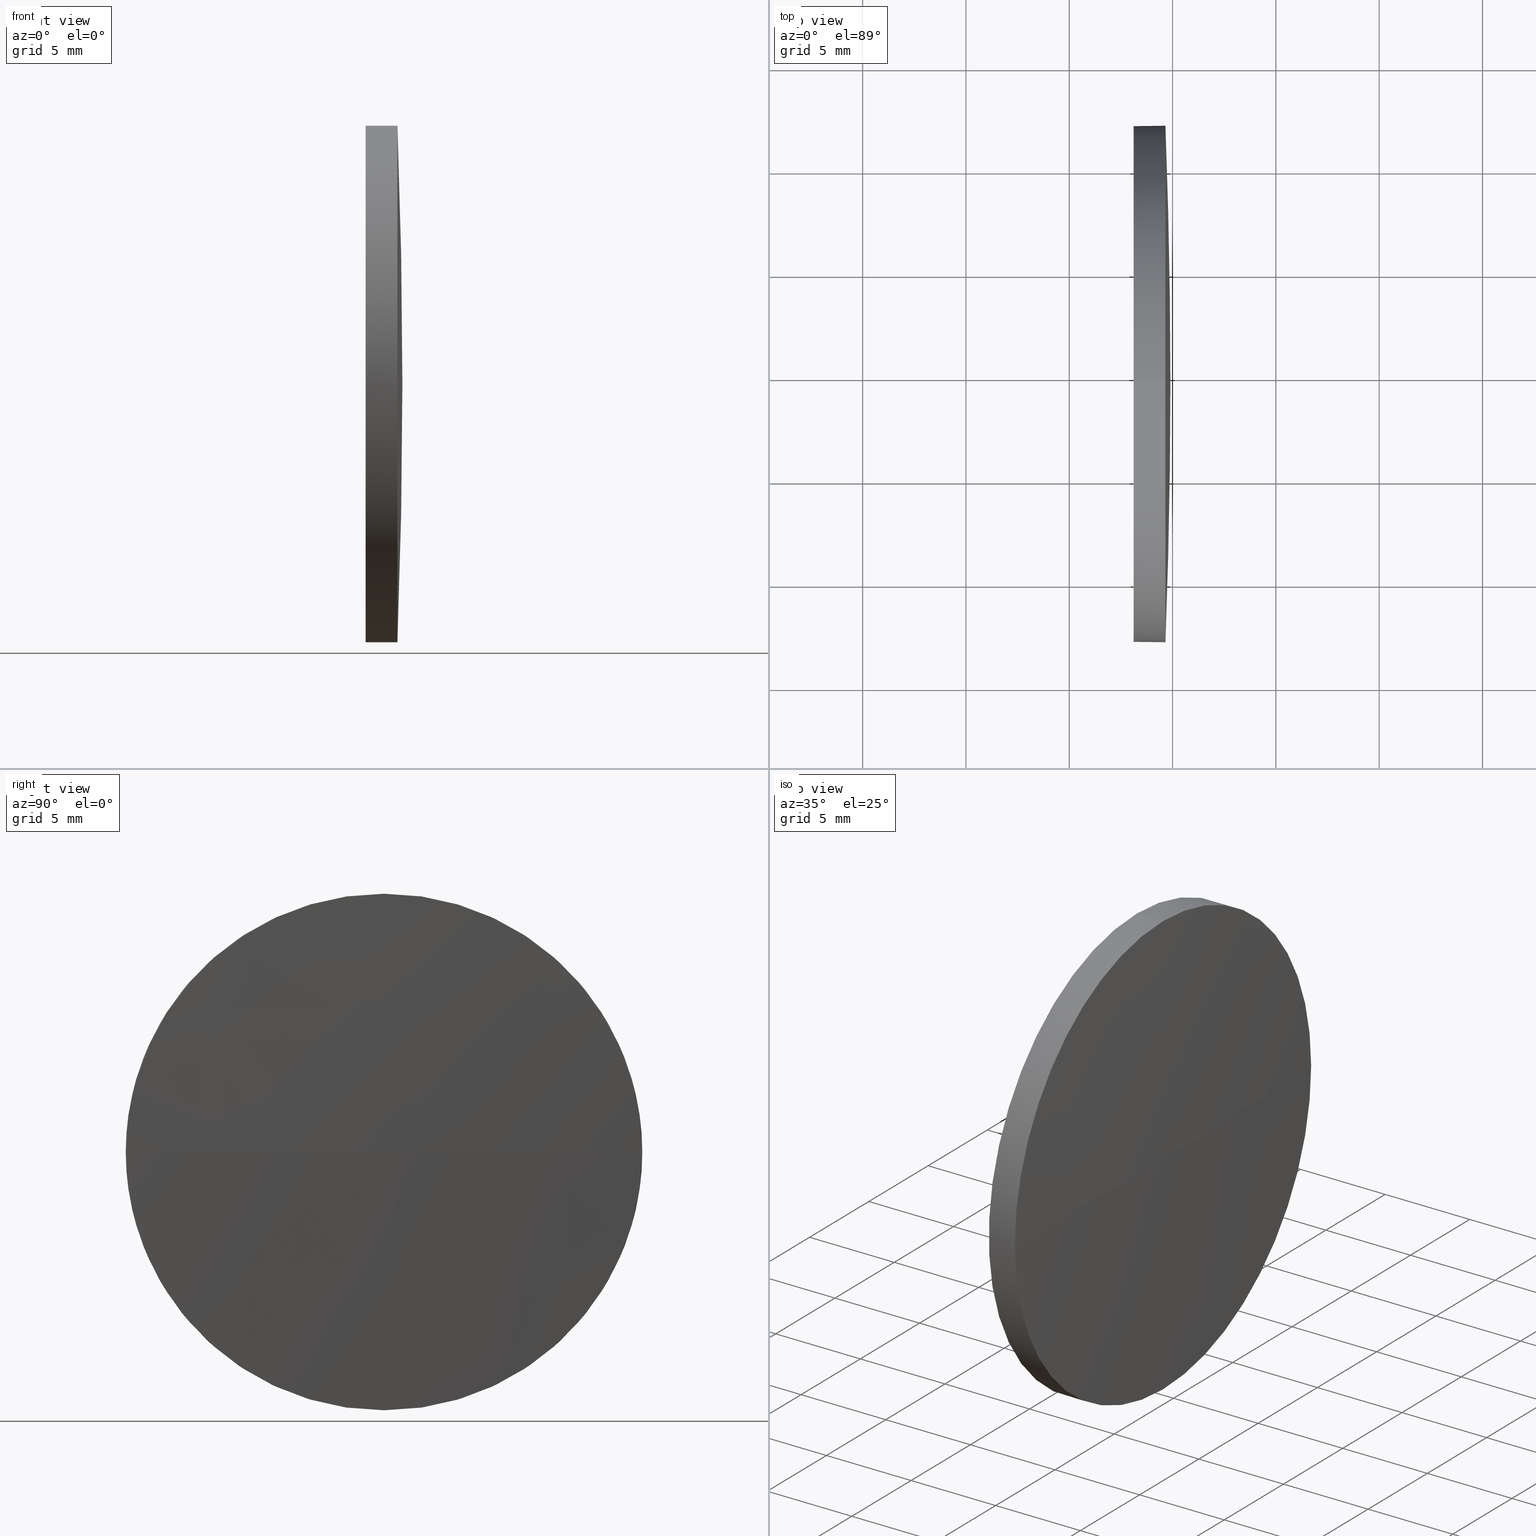
[diagram: canonical four-view strip — front | top / right | iso, engineering-drawing reading convention]
A machine part, canonical four-view strip (front | top / right | iso — engineering-drawing reading convention). The complete STEP part file that produces these views, byte-faithful:
ISO-10303-21;
HEADER;
FILE_DESCRIPTION (( 'STEP AP214' ),
    '1' );
FILE_NAME ('100138.STEP',
    '2019-05-15T05:12:33',
    ( '' ),
    ( '' ),
    'SwSTEP 2.0',
    'SolidWorks 2016',
    '' );
FILE_SCHEMA (( 'AUTOMOTIVE_DESIGN' ));
ENDSEC;

DATA;
#1 = AXIS2_PLACEMENT_3D ( 'NONE', #71, #147, #174 ) ;
#2 = VERTEX_POINT ( 'NONE', #53 ) ;
#3 = DIRECTION ( 'NONE',  ( -1.000000000000000000, -0.0000000000000000000, -0.0000000000000000000 ) ) ;
#4 = DIRECTION ( 'NONE',  ( 0.0000000000000000000, -1.224646799147353200E-016, 1.000000000000000000 ) ) ;
#5 = ORIENTED_EDGE ( 'NONE', *, *, #157, .F. ) ;
#6 = AXIS2_PLACEMENT_3D ( 'NONE', #145, #30, #42 ) ;
#7 = CARTESIAN_POINT ( 'NONE',  ( 483.1155688377202800, 64.61114533818170000, 12.49999999999999600 ) ) ;
#8 = PRODUCT_RELATED_PRODUCT_CATEGORY ( 'part', '', ( #135 ) ) ;
#9 = APPLICATION_CONTEXT ( 'automotive_design' ) ;
#10 = SHAPE_DEFINITION_REPRESENTATION ( #70, #142 ) ;
#11 = AXIS2_PLACEMENT_3D ( 'NONE', #56, #160, #175 ) ;
#12 = PRESENTATION_STYLE_ASSIGNMENT (( #179 ) ) ;
#13 = PRESENTATION_LAYER_ASSIGNMENT (  '', '', ( #171 ) ) ;
#14 = AXIS2_PLACEMENT_3D ( 'NONE', #86, #45, #162 ) ;
#15 = ORIENTED_EDGE ( 'NONE', *, *, #51, .T. ) ;
#16 =( LENGTH_UNIT ( ) NAMED_UNIT ( * ) SI_UNIT ( .MILLI., .METRE. ) );
#17 = CARTESIAN_POINT ( 'NONE',  ( 484.6555688377202400, 64.61114533818170000, 12.49999999999999600 ) ) ;
#18 = CARTESIAN_POINT ( 'NONE',  ( 480.7499529349593100, 64.61114533818170000, -12.49999999999999600 ) ) ;
#19 = DIRECTION ( 'NONE',  ( 0.0000000000000000000, -1.000000000000000000, 0.0000000000000000000 ) ) ;
#20 = DIRECTION ( 'NONE',  ( -1.000000000000000000, -0.0000000000000000000, -0.0000000000000000000 ) ) ;
#21 = DIRECTION ( 'NONE',  ( 0.0000000000000000000, 0.0000000000000000000, 1.000000000000000000 ) ) ;
#22 = CIRCLE ( 'NONE', #94, 12.49999999999999600 ) ;
#23 = ORIENTED_EDGE ( 'NONE', *, *, #150, .T. ) ;
#24 = EDGE_CURVE ( 'NONE', #170, #2, #151, .T. ) ;
#25 = FACE_OUTER_BOUND ( 'NONE', #165, .T. ) ;
#26 = EDGE_CURVE ( 'NONE', #41, #146, #180, .T. ) ;
#27 = VECTOR ( 'NONE', #89, 1000.000000000000000 ) ;
#28 = ORIENTED_EDGE ( 'NONE', *, *, #157, .T. ) ;
#29 = DIRECTION ( 'NONE',  ( 0.0000000000000000000, 0.0000000000000000000, 1.000000000000000000 ) ) ;
#30 = DIRECTION ( 'NONE',  ( 0.0000000000000000000, 0.0000000000000000000, 1.000000000000000000 ) ) ;
#31 = EDGE_LOOP ( 'NONE', ( #99, #76 ) ) ;
#32 = VECTOR ( 'NONE', #173, 1000.000000000000000 ) ;
#33 = ORIENTED_EDGE ( 'NONE', *, *, #88, .F. ) ;
#34 = APPLICATION_PROTOCOL_DEFINITION ( 'draft international standard', 'automotive_design', 1998, #48 ) ;
#35 = PRODUCT_CONTEXT ( 'NONE', #9, 'mechanical' ) ;
#36 = COLOUR_RGB ( '',1.000000000000000000, 1.000000000000000000, 1.000000000000000000 ) ;
#37 = ADVANCED_FACE ( 'NONE', ( #25 ), #62, .T. ) ;
#38 = MANIFOLD_SOLID_BREP ( '��ת1', #63 ) ;
#39 = CYLINDRICAL_SURFACE ( 'NONE', #143, 12.49999999999999600 ) ;
#40 = EDGE_LOOP ( 'NONE', ( #49, #134, #5, #52 ) ) ;
#41 = VERTEX_POINT ( 'NONE', #85 ) ;
#42 = DIRECTION ( 'NONE',  ( 0.0000000000000000000, -1.000000000000000000, 0.0000000000000000000 ) ) ;
#43 = FACE_OUTER_BOUND ( 'NONE', #44, .T. ) ;
#44 = EDGE_LOOP ( 'NONE', ( #130, #23, #126, #33 ) ) ;
#45 = DIRECTION ( 'NONE',  ( -1.000000000000000000, -0.0000000000000000000, -0.0000000000000000000 ) ) ;
#46 = SPHERICAL_SURFACE ( 'NONE', #166, 325.6408333333307000 ) ;
#47 =( NAMED_UNIT ( * ) SI_UNIT ( $, .STERADIAN. ) SOLID_ANGLE_UNIT ( ) );
#48 = APPLICATION_CONTEXT ( 'automotive_design' ) ;
#49 = ORIENTED_EDGE ( 'NONE', *, *, #150, .F. ) ;
#50 = UNCERTAINTY_MEASURE_WITH_UNIT (LENGTH_MEASURE( 1.000000000000000100E-005 ), #110, 'distance_accuracy_value', 'NONE');
#51 = EDGE_CURVE ( 'NONE', #111, #170, #138, .T. ) ;
#52 = ORIENTED_EDGE ( 'NONE', *, *, #24, .F. ) ;
#53 = CARTESIAN_POINT ( 'NONE',  ( 484.6555688377202400, 64.61114533818170000, -12.49999999999999600 ) ) ;
#54 = DIRECTION ( 'NONE',  ( -1.000000000000000000, 0.0000000000000000000, 0.0000000000000000000 ) ) ;
#55 = DIRECTION ( 'NONE',  ( 0.0000000000000000000, -1.000000000000000000, -1.224646799147353200E-016 ) ) ;
#56 = CARTESIAN_POINT ( 'NONE',  ( 483.1155688377202800, 64.61114533818170000, 0.0000000000000000000 ) ) ;
#57 = CARTESIAN_POINT ( 'NONE',  ( 484.6555688377203000, 52.11114533818182100, 0.0000000000000000000 ) ) ;
#58 = STYLED_ITEM ( 'NONE', ( #12 ), #142 ) ;
#59 = DIRECTION ( 'NONE',  ( 0.0000000000000000000, 0.0000000000000000000, 1.000000000000000000 ) ) ;
#60 = DIRECTION ( 'NONE',  ( 0.0000000000000000000, 0.0000000000000000000, 1.000000000000000000 ) ) ;
#61 = SURFACE_STYLE_FILL_AREA ( #149 ) ;
#62 = CYLINDRICAL_SURFACE ( 'NONE', #139, 12.49999999999999600 ) ;
#63 = CLOSED_SHELL ( 'NONE', ( #37, #93, #136, #167, #152 ) ) ;
#64 = CIRCLE ( 'NONE', #156, 325.6408333333307000 ) ;
#65 = DIRECTION ( 'NONE',  ( -1.000000000000000000, -0.0000000000000000000, -0.0000000000000000000 ) ) ;
#66 = ORIENTED_EDGE ( 'NONE', *, *, #78, .T. ) ;
#67 = DIRECTION ( 'NONE',  ( 0.0000000000000000000, 0.0000000000000000000, -1.000000000000000000 ) ) ;
#68 = DIRECTION ( 'NONE',  ( -1.000000000000000000, -0.0000000000000000000, -0.0000000000000000000 ) ) ;
#69 = DIRECTION ( 'NONE',  ( 0.0000000000000000000, 0.0000000000000000000, 1.000000000000000000 ) ) ;
#70 = PRODUCT_DEFINITION_SHAPE ( 'NONE', 'NONE',  #125 ) ;
#71 = CARTESIAN_POINT ( 'NONE',  ( 484.6555688377202400, 64.61114533818170000, 0.0000000000000000000 ) ) ;
#72 = CARTESIAN_POINT ( 'NONE',  ( 159.2547355043896000, 64.61114533818236800, 0.0000000000000000000 ) ) ;
#73 = MECHANICAL_DESIGN_GEOMETRIC_PRESENTATION_REPRESENTATION (  '', ( #171 ), #92 ) ;
#74 = PLANE ( 'NONE',  #11 ) ;
#75 = CARTESIAN_POINT ( 'NONE',  ( 484.6555688377203000, 77.11114533818225400, 1.530808498934176500E-015 ) ) ;
#76 = ORIENTED_EDGE ( 'NONE', *, *, #182, .T. ) ;
#77 =( NAMED_UNIT ( * ) PLANE_ANGLE_UNIT ( ) SI_UNIT ( $, .RADIAN. ) );
#78 = EDGE_CURVE ( 'NONE', #111, #154, #102, .T. ) ;
#79 = LINE ( 'NONE', #18, #27 ) ;
#80 = ORIENTED_EDGE ( 'NONE', *, *, #95, .F. ) ;
#81 = FACE_OUTER_BOUND ( 'NONE', #83, .T. ) ;
#82 = CIRCLE ( 'NONE', #101, 12.49999999999999600 ) ;
#83 = EDGE_LOOP ( 'NONE', ( #80, #28, #108, #66, #140 ) ) ;
#84 = DIRECTION ( 'NONE',  ( 0.0000000000000000000, 0.0000000000000000000, 1.000000000000000000 ) ) ;
#85 = CARTESIAN_POINT ( 'NONE',  ( 484.8955688377203600, 64.61114533818235400, 0.0000000000000000000 ) ) ;
#86 = CARTESIAN_POINT ( 'NONE',  ( 484.6555688377202400, 64.61114533818170000, 0.0000000000000000000 ) ) ;
#87 = CARTESIAN_POINT ( 'NONE',  ( 484.6555688377202400, 64.61114533818170000, 0.0000000000000000000 ) ) ;
#88 = EDGE_CURVE ( 'NONE', #146, #111, #168, .T. ) ;
#89 = DIRECTION ( 'NONE',  ( -1.000000000000000000, -0.0000000000000000000, -0.0000000000000000000 ) ) ;
#90 = APPLICATION_PROTOCOL_DEFINITION ( 'draft international standard', 'automotive_design', 1998, #9 ) ;
#91 = VERTEX_POINT ( 'NONE', #118 ) ;
#92 =( GEOMETRIC_REPRESENTATION_CONTEXT ( 3 ) GLOBAL_UNCERTAINTY_ASSIGNED_CONTEXT ( ( #176 ) ) GLOBAL_UNIT_ASSIGNED_CONTEXT ( ( #16, #107, #97 ) ) REPRESENTATION_CONTEXT ( 'NONE', 'WORKASPACE' ) );
#93 = ADVANCED_FACE ( 'NONE', ( #43 ), #46, .T. ) ;
#94 = AXIS2_PLACEMENT_3D ( 'NONE', #129, #3, #59 ) ;
#95 = EDGE_CURVE ( 'NONE', #2, #91, #79, .T. ) ;
#96 = SURFACE_STYLE_USAGE ( .BOTH. , #155 ) ;
#97 =( NAMED_UNIT ( * ) SI_UNIT ( $, .STERADIAN. ) SOLID_ANGLE_UNIT ( ) );
#98 = FACE_OUTER_BOUND ( 'NONE', #31, .T. ) ;
#99 = ORIENTED_EDGE ( 'NONE', *, *, #113, .T. ) ;
#100 = CARTESIAN_POINT ( 'NONE',  ( 483.1155688377202800, 64.61114533818170000, 0.0000000000000000000 ) ) ;
#101 = AXIS2_PLACEMENT_3D ( 'NONE', #100, #127, #60 ) ;
#102 = LINE ( 'NONE', #172, #32 ) ;
#103 = ORIENTED_EDGE ( 'NONE', *, *, #113, .F. ) ;
#104 =( GEOMETRIC_REPRESENTATION_CONTEXT ( 3 ) GLOBAL_UNCERTAINTY_ASSIGNED_CONTEXT ( ( #50 ) ) GLOBAL_UNIT_ASSIGNED_CONTEXT ( ( #110, #112, #177 ) ) REPRESENTATION_CONTEXT ( 'NONE', 'WORKASPACE' ) );
#105 = AXIS2_PLACEMENT_3D ( 'NONE', #87, #124, #159 ) ;
#106 = ORIENTED_EDGE ( 'NONE', *, *, #24, .T. ) ;
#107 =( NAMED_UNIT ( * ) PLANE_ANGLE_UNIT ( ) SI_UNIT ( $, .RADIAN. ) );
#108 = ORIENTED_EDGE ( 'NONE', *, *, #88, .T. ) ;
#109 = CARTESIAN_POINT ( 'NONE',  ( 480.7499529349593100, 64.61114533818170000, 0.0000000000000000000 ) ) ;
#110 =( LENGTH_UNIT ( ) NAMED_UNIT ( * ) SI_UNIT ( .MILLI., .METRE. ) );
#111 = VERTEX_POINT ( 'NONE', #17 ) ;
#112 =( NAMED_UNIT ( * ) PLANE_ANGLE_UNIT ( ) SI_UNIT ( $, .RADIAN. ) );
#113 = EDGE_CURVE ( 'NONE', #154, #91, #82, .T. ) ;
#114 = DIRECTION ( 'NONE',  ( 1.000000000000000000, 0.0000000000000000000, 0.0000000000000000000 ) ) ;
#115 = ORIENTED_EDGE ( 'NONE', *, *, #95, .T. ) ;
#116 = FACE_OUTER_BOUND ( 'NONE', #40, .T. ) ;
#117 = ORIENTED_EDGE ( 'NONE', *, *, #78, .F. ) ;
#118 = CARTESIAN_POINT ( 'NONE',  ( 483.1155688377202800, 64.61114533818170000, -12.49999999999999600 ) ) ;
#119 = AXIS2_PLACEMENT_3D ( 'NONE', #161, #148, #114 ) ;
#120 = CARTESIAN_POINT ( 'NONE',  ( 159.2547355043896000, 64.61114533818236800, 0.0000000000000000000 ) ) ;
#121 = FILL_AREA_STYLE ('',( #186 ) ) ;
#122 = CIRCLE ( 'NONE', #1, 12.49999999999999600 ) ;
#123 = AXIS2_PLACEMENT_3D ( 'NONE', #141, #68, #69 ) ;
#124 = DIRECTION ( 'NONE',  ( -1.000000000000000000, -0.0000000000000000000, -0.0000000000000000000 ) ) ;
#125 = PRODUCT_DEFINITION ( 'δ֪', '', #133, #153 ) ;
#126 = ORIENTED_EDGE ( 'NONE', *, *, #51, .F. ) ;
#127 = DIRECTION ( 'NONE',  ( -1.000000000000000000, -0.0000000000000000000, -0.0000000000000000000 ) ) ;
#128 = FILL_AREA_STYLE_COLOUR ( '', #164 ) ;
#129 = CARTESIAN_POINT ( 'NONE',  ( 483.1155688377202800, 64.61114533818170000, 0.0000000000000000000 ) ) ;
#130 = ORIENTED_EDGE ( 'NONE', *, *, #26, .F. ) ;
#131 =( LENGTH_UNIT ( ) NAMED_UNIT ( * ) SI_UNIT ( .MILLI., .METRE. ) );
#132 = MECHANICAL_DESIGN_GEOMETRIC_PRESENTATION_REPRESENTATION (  '', ( #58 ), #184 ) ;
#133 = PRODUCT_DEFINITION_FORMATION_WITH_SPECIFIED_SOURCE ( '�κ�', '', #135, .NOT_KNOWN. ) ;
#134 = ORIENTED_EDGE ( 'NONE', *, *, #26, .T. ) ;
#135 = PRODUCT ( '100138', '100138', '', ( #35 ) ) ;
#136 = ADVANCED_FACE ( 'NONE', ( #116 ), #137, .T. ) ;
#137 = SPHERICAL_SURFACE ( 'NONE', #6, 325.6408333333307000 ) ;
#138 = CIRCLE ( 'NONE', #14, 12.49999999999999600 ) ;
#139 = AXIS2_PLACEMENT_3D ( 'NONE', #158, #65, #84 ) ;
#140 = ORIENTED_EDGE ( 'NONE', *, *, #182, .F. ) ;
#141 = CARTESIAN_POINT ( 'NONE',  ( 484.6555688377202400, 64.61114533818170000, 0.0000000000000000000 ) ) ;
#142 = ADVANCED_BREP_SHAPE_REPRESENTATION ( '100138', ( #38, #119 ), #104 ) ;
#143 = AXIS2_PLACEMENT_3D ( 'NONE', #109, #20, #29 ) ;
#144 = CARTESIAN_POINT ( 'NONE',  ( 159.2547355043896000, 64.61114533818236800, 0.0000000000000000000 ) ) ;
#145 = CARTESIAN_POINT ( 'NONE',  ( 159.2547355043896000, 64.61114533818236800, 0.0000000000000000000 ) ) ;
#146 = VERTEX_POINT ( 'NONE', #57 ) ;
#147 = DIRECTION ( 'NONE',  ( -1.000000000000000000, -0.0000000000000000000, -0.0000000000000000000 ) ) ;
#148 = DIRECTION ( 'NONE',  ( 0.0000000000000000000, 0.0000000000000000000, 1.000000000000000000 ) ) ;
#149 = FILL_AREA_STYLE ('',( #128 ) ) ;
#150 = EDGE_CURVE ( 'NONE', #41, #170, #64, .T. ) ;
#151 = CIRCLE ( 'NONE', #123, 12.49999999999999600 ) ;
#152 = ADVANCED_FACE ( 'NONE', ( #98 ), #74, .F. ) ;
#153 = PRODUCT_DEFINITION_CONTEXT ( 'detailed design', #48, 'design' ) ;
#154 = VERTEX_POINT ( 'NONE', #7 ) ;
#155 = SURFACE_SIDE_STYLE ('',( #183 ) ) ;
#156 = AXIS2_PLACEMENT_3D ( 'NONE', #144, #4, #55 ) ;
#157 = EDGE_CURVE ( 'NONE', #2, #146, #122, .T. ) ;
#158 = CARTESIAN_POINT ( 'NONE',  ( 480.7499529349593100, 64.61114533818170000, 0.0000000000000000000 ) ) ;
#159 = DIRECTION ( 'NONE',  ( 0.0000000000000000000, 0.0000000000000000000, 1.000000000000000000 ) ) ;
#160 = DIRECTION ( 'NONE',  ( 1.000000000000000000, 0.0000000000000000000, 0.0000000000000000000 ) ) ;
#161 = CARTESIAN_POINT ( 'NONE',  ( 0.0000000000000000000, 0.0000000000000000000, 0.0000000000000000000 ) ) ;
#162 = DIRECTION ( 'NONE',  ( 0.0000000000000000000, 0.0000000000000000000, 1.000000000000000000 ) ) ;
#163 = SURFACE_SIDE_STYLE ('',( #61 ) ) ;
#164 = COLOUR_RGB ( '',1.000000000000000000, 1.000000000000000000, 1.000000000000000000 ) ;
#165 = EDGE_LOOP ( 'NONE', ( #106, #115, #103, #117, #15 ) ) ;
#166 = AXIS2_PLACEMENT_3D ( 'NONE', #72, #21, #19 ) ;
#167 = ADVANCED_FACE ( 'NONE', ( #81 ), #39, .T. ) ;
#168 = CIRCLE ( 'NONE', #105, 12.49999999999999600 ) ;
#169 = AXIS2_PLACEMENT_3D ( 'NONE', #120, #67, #54 ) ;
#170 = VERTEX_POINT ( 'NONE', #75 ) ;
#171 = STYLED_ITEM ( 'NONE', ( #181 ), #38 ) ;
#172 = CARTESIAN_POINT ( 'NONE',  ( 480.7499529349593100, 64.61114533818170000, 12.49999999999999600 ) ) ;
#173 = DIRECTION ( 'NONE',  ( -1.000000000000000000, -0.0000000000000000000, -0.0000000000000000000 ) ) ;
#174 = DIRECTION ( 'NONE',  ( 0.0000000000000000000, 0.0000000000000000000, 1.000000000000000000 ) ) ;
#175 = DIRECTION ( 'NONE',  ( 0.0000000000000000000, 0.0000000000000000000, -1.000000000000000000 ) ) ;
#176 = UNCERTAINTY_MEASURE_WITH_UNIT (LENGTH_MEASURE( 1.000000000000000100E-005 ), #16, 'distance_accuracy_value', 'NONE');
#177 =( NAMED_UNIT ( * ) SI_UNIT ( $, .STERADIAN. ) SOLID_ANGLE_UNIT ( ) );
#178 = PRESENTATION_LAYER_ASSIGNMENT (  '', '', ( #58 ) ) ;
#179 = SURFACE_STYLE_USAGE ( .BOTH. , #163 ) ;
#180 = CIRCLE ( 'NONE', #169, 325.6408333333307000 ) ;
#181 = PRESENTATION_STYLE_ASSIGNMENT (( #96 ) ) ;
#182 = EDGE_CURVE ( 'NONE', #91, #154, #22, .T. ) ;
#183 = SURFACE_STYLE_FILL_AREA ( #121 ) ;
#184 =( GEOMETRIC_REPRESENTATION_CONTEXT ( 3 ) GLOBAL_UNCERTAINTY_ASSIGNED_CONTEXT ( ( #185 ) ) GLOBAL_UNIT_ASSIGNED_CONTEXT ( ( #131, #77, #47 ) ) REPRESENTATION_CONTEXT ( 'NONE', 'WORKASPACE' ) );
#185 = UNCERTAINTY_MEASURE_WITH_UNIT (LENGTH_MEASURE( 1.000000000000000100E-005 ), #131, 'distance_accuracy_value', 'NONE');
#186 = FILL_AREA_STYLE_COLOUR ( '', #36 ) ;
ENDSEC;
END-ISO-10303-21;
